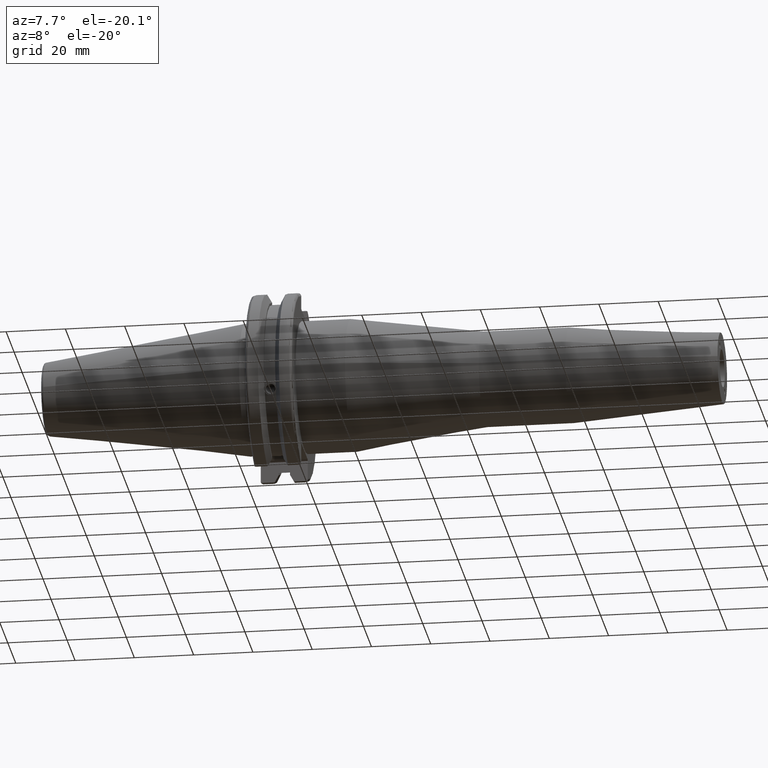
[diagram: clean part render]
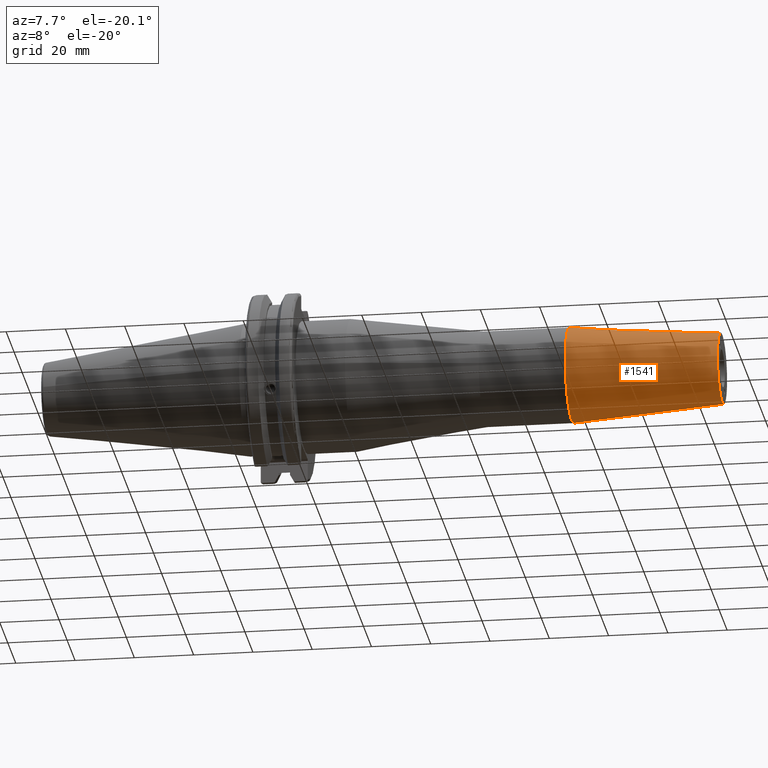
[diagram: same view with one face highlighted and labeled with its STEP entity id]
A machine part, auxiliary view. The second image highlights one B-rep face of the part: STEP entity #1541.
In plain terms, the highlighted conical surface has half-angle 4.5 deg.
Its self-contained STEP definition (entity closure, byte-faithful):
#187=FACE_OUTER_BOUND('',#282,.T.);
#282=EDGE_LOOP('',(#1090,#1091,#1092,#1093));
#385=LINE('',#2427,#485);
#485=VECTOR('',#1897,14.);
#587=CIRCLE('',#1671,12.);
#588=CIRCLE('',#1672,16.);
#666=VERTEX_POINT('',#2424);
#667=VERTEX_POINT('',#2426);
#831=EDGE_CURVE('',#666,#666,#587,.T.);
#832=EDGE_CURVE('',#666,#667,#385,.T.);
#833=EDGE_CURVE('',#667,#667,#588,.T.);
#1090=ORIENTED_EDGE('',*,*,#831,.F.);
#1091=ORIENTED_EDGE('',*,*,#832,.T.);
#1092=ORIENTED_EDGE('',*,*,#833,.T.);
#1093=ORIENTED_EDGE('',*,*,#832,.F.);
#1516=CONICAL_SURFACE('',#1670,14.,0.0785398163397452);
#1541=ADVANCED_FACE('',(#187),#1516,.T.);
#1670=AXIS2_PLACEMENT_3D('',#2423,#1893,#1894);
#1671=AXIS2_PLACEMENT_3D('',#2425,#1895,#1896);
#1672=AXIS2_PLACEMENT_3D('',#2428,#1898,#1899);
#1893=DIRECTION('center_axis',(-1.,0.,0.));
#1894=DIRECTION('ref_axis',(0.,1.,0.));
#1895=DIRECTION('center_axis',(1.,0.,0.));
#1896=DIRECTION('ref_axis',(0.,0.,-1.));
#1897=DIRECTION('',(-0.996917333733128,-0.0784590957278453,-9.60846804471016E-18));
#1898=DIRECTION('center_axis',(1.,0.,0.));
#1899=DIRECTION('ref_axis',(0.,0.,-1.));
#2423=CARTESIAN_POINT('Origin',(134.587590527651,0.,0.));
#2424=CARTESIAN_POINT('',(160.,-12.,-1.46957615897682E-15));
#2425=CARTESIAN_POINT('Origin',(160.,0.,0.));
#2426=CARTESIAN_POINT('',(109.175181055301,-16.,-1.95943487863577E-15));
#2427=CARTESIAN_POINT('',(134.587590527651,-14.,-1.71450551880629E-15));
#2428=CARTESIAN_POINT('Origin',(109.175181055301,0.,0.));